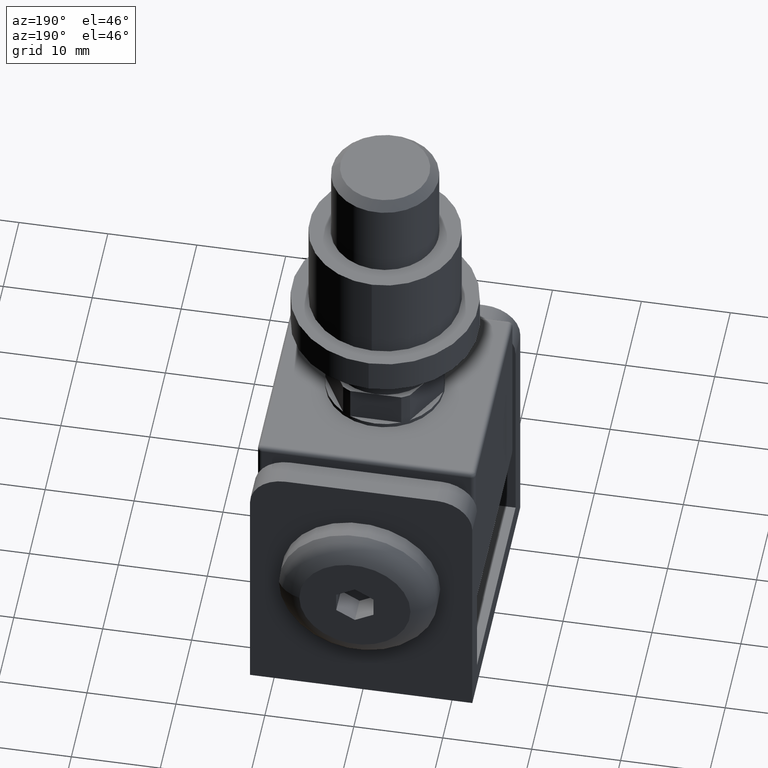
[diagram: clean part render]
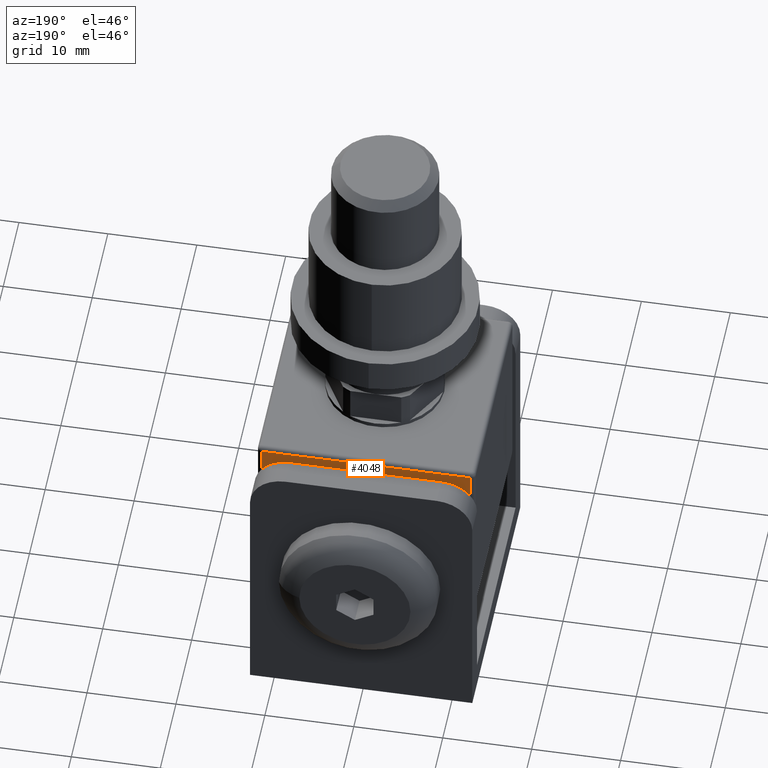
[diagram: same view with one face highlighted and labeled with its STEP entity id]
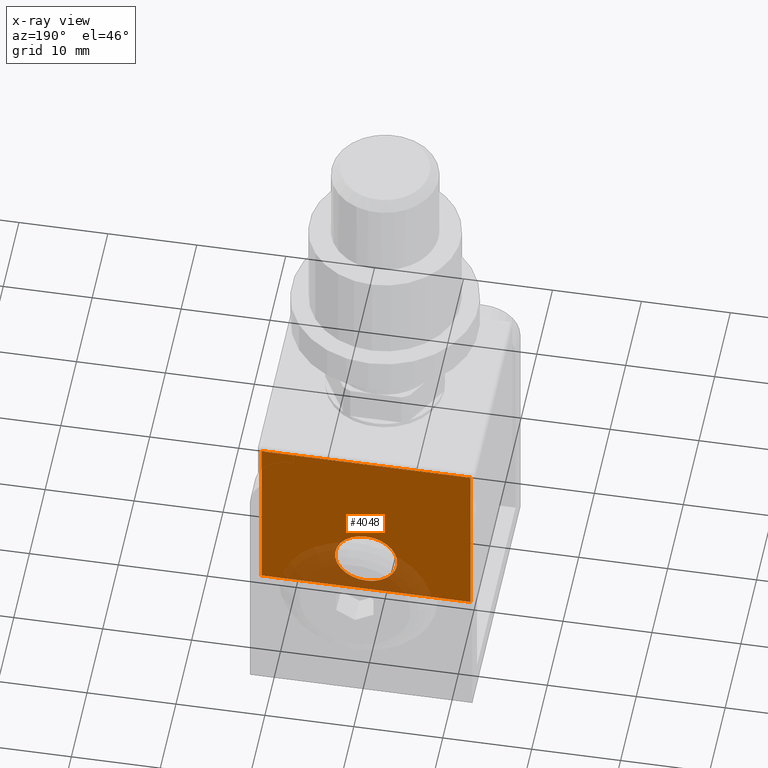
[diagram: x-ray of the same camera — body ghosted, the highlighted face saturated]
A machine part, auxiliary view. The second image highlights one B-rep face of the part: STEP entity #4048.
The next image is the same camera in x-ray: the body ghosted, the highlighted face saturated — about 13% of this face is hidden behind the body in this view.
In plain terms, the highlighted planar face has unit normal (0, 1, 0).
Its self-contained STEP definition (entity closure, byte-faithful):
#80 = EDGE_CURVE ( 'NONE', #2401, #9258, #4582, .T. ) ;
#712 = DIRECTION ( 'NONE',  ( 0.000000000000000000, 0.000000000000000000, 1.000000000000000000 ) ) ;
#836 = CARTESIAN_POINT ( 'NONE',  ( -11.74999999999998934, 12.09999999999999964, 10.90000000000000213 ) ) ;
#1343 = LINE ( 'NONE', #2077, #2482 ) ;
#1562 = VECTOR ( 'NONE', #2036, 1000.000000000000000 ) ;
#1580 = ORIENTED_EDGE ( 'NONE', *, *, #8631, .T. ) ;
#1879 = VECTOR ( 'NONE', #12578, 1000.000000000000000 ) ;
#2036 = DIRECTION ( 'NONE',  ( -1.000000000000000000, 0.000000000000000000, 7.080503983578804316E-17 ) ) ;
#2077 = CARTESIAN_POINT ( 'NONE',  ( 11.75000000000000000, 12.09999999999999964, -8.900000000000000355 ) ) ;
#2401 = VERTEX_POINT ( 'NONE', #4978 ) ;
#2482 = VECTOR ( 'NONE', #15152, 1000.000000000000000 ) ;
#2818 = CARTESIAN_POINT ( 'NONE',  ( 5.204170427930421283E-15, 12.09999999999999964, -4.099999999999999645 ) ) ;
#4048 = ADVANCED_FACE ( 'NONE', ( #13156, #5025 ), #6639, .T. ) ;
#4360 = CARTESIAN_POINT ( 'NONE',  ( 12.25000000000000000, 12.09999999999999964, 10.90000000000000213 ) ) ;
#4502 = VERTEX_POINT ( 'NONE', #836 ) ;
#4582 = LINE ( 'NONE', #5560, #1562 ) ;
#4705 = ORIENTED_EDGE ( 'NONE', *, *, #14330, .T. ) ;
#4880 = EDGE_LOOP ( 'NONE', ( #10030, #1580, #14518, #4705 ) ) ;
#4978 = CARTESIAN_POINT ( 'NONE',  ( 11.75000000000000000, 12.09999999999999964, -8.900000000000000355 ) ) ;
#5025 = FACE_BOUND ( 'NONE', #12658, .T. ) ;
#5560 = CARTESIAN_POINT ( 'NONE',  ( -12.24999999999999645, 12.09999999999999964, -8.899999999999998579 ) ) ;
#5642 = CIRCLE ( 'NONE', #14967, 3.500000000000000000 ) ;
#6365 = CARTESIAN_POINT ( 'NONE',  ( 5.204170427930421283E-15, 12.09999999999999964, -0.5999999999999994227 ) ) ;
#6438 = CARTESIAN_POINT ( 'NONE',  ( 11.74999999999999822, 12.09999999999999964, 10.90000000000000213 ) ) ;
#6639 = PLANE ( 'NONE',  #11871 ) ;
#6681 = EDGE_CURVE ( 'NONE', #9915, #9915, #5642, .T. ) ;
#6691 = VECTOR ( 'NONE', #13711, 1000.000000000000000 ) ;
#7930 = EDGE_CURVE ( 'NONE', #4502, #10271, #7993, .T. ) ;
#7993 = LINE ( 'NONE', #4360, #6691 ) ;
#8631 = EDGE_CURVE ( 'NONE', #9258, #4502, #12210, .T. ) ;
#9258 = VERTEX_POINT ( 'NONE', #12841 ) ;
#9561 = ORIENTED_EDGE ( 'NONE', *, *, #6681, .F. ) ;
#9915 = VERTEX_POINT ( 'NONE', #6365 ) ;
#10030 = ORIENTED_EDGE ( 'NONE', *, *, #80, .T. ) ;
#10271 = VERTEX_POINT ( 'NONE', #6438 ) ;
#11128 = DIRECTION ( 'NONE',  ( 0.000000000000000000, 1.000000000000000000, 0.000000000000000000 ) ) ;
#11508 = CARTESIAN_POINT ( 'NONE',  ( -11.74999999999998934, 12.09999999999999964, 11.40000000000000213 ) ) ;
#11871 = AXIS2_PLACEMENT_3D ( 'NONE', #13841, #14937, #712 ) ;
#12210 = LINE ( 'NONE', #11508, #1879 ) ;
#12310 = DIRECTION ( 'NONE',  ( 0.000000000000000000, 0.000000000000000000, 1.000000000000000000 ) ) ;
#12578 = DIRECTION ( 'NONE',  ( 3.043374519257556522E-16, 0.000000000000000000, 1.000000000000000000 ) ) ;
#12658 = EDGE_LOOP ( 'NONE', ( #9561 ) ) ;
#12841 = CARTESIAN_POINT ( 'NONE',  ( -11.74999999999999645, 12.09999999999999964, -8.899999999999998579 ) ) ;
#13156 = FACE_OUTER_BOUND ( 'NONE', #4880, .T. ) ;
#13711 = DIRECTION ( 'NONE',  ( 1.000000000000000000, 0.000000000000000000, 7.080503983578808014E-17 ) ) ;
#13841 = CARTESIAN_POINT ( 'NONE',  ( 0.000000000000000000, 12.09999999999999964, 0.000000000000000000 ) ) ;
#14330 = EDGE_CURVE ( 'NONE', #10271, #2401, #1343, .T. ) ;
#14518 = ORIENTED_EDGE ( 'NONE', *, *, #7930, .T. ) ;
#14937 = DIRECTION ( 'NONE',  ( 0.000000000000000000, 1.000000000000000000, -0.000000000000000000 ) ) ;
#14967 = AXIS2_PLACEMENT_3D ( 'NONE', #2818, #11128, #12310 ) ;
#15152 = DIRECTION ( 'NONE',  ( 7.608436298143891306E-17, -0.000000000000000000, -1.000000000000000000 ) ) ;